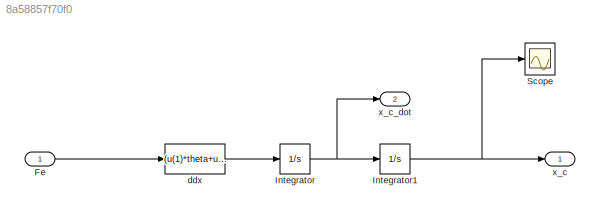
MODEL slx_8a58857f70f0
KIND model
CONFIG AbsTol = auto
CONFIG EnableMultiTasking = off
CONFIG FixedStep = auto
CONFIG MaxStep = auto
CONFIG MinStep = auto
CONFIG RelTol = 1e-3
CONFIG SampleTimeConstraint = Unconstrained
CONFIG Solver = VariableStepAuto
CONFIG SolverName = VariableStepAuto
CONFIG StartTime = 0.0
CONFIG StopTime = 10.0
BLOCK [Inport] Fe
  IconDisplay = Port number
BLOCK [Integrator] Integrator
  ContinuousStateAttributes = 'x_c_dot'
  Ports = [1, 1]
BLOCK [Integrator] Integrator1
  ContinuousStateAttributes = 'x_c'
  Ports = [1, 1]
BLOCK [Scope] Scope
  Floating = off
  NumInputPorts = 1
  Ports = [1]
  ScopeSpecificationString = Simulink.scopes.TimeScopeBlockCfg('CurrentConfiguration', extmgr.ConfigurationSet(extmgr.Configuration('Core','General UI',true),extmgr.Configuration('Core','Source UI',true),extmgr.Configuration('Sources','WiredSimulink',true),extmgr.Configuration('Visuals','Time Domain',true,'SerializedDisplays',{struct('MinYLimReal','-1.00000','MaxYLimReal','1.00000','YLabelReal','','MinYLimMag','0.00000','MaxY...<+1331ch>
BLOCK [Fcn] ddx
  Expr = (u(1)*theta+u(1)*phi+Fs)/m
BLOCK [Outport] x_c
  IconDisplay = Port number
BLOCK [Outport] x_c_dot
  IconDisplay = Port number
  Port = 2
LINE Fe:1 -> ddx:1
NET Integrator1:1 -> Scope:1, x_c:1
NET Integrator:1 -> Integrator1:1, x_c_dot:1
LINE ddx:1 -> Integrator:1
note: NET lines group one-source signal fan-out (src -> all destinations, sorted); 1:1 wires keep LINE
